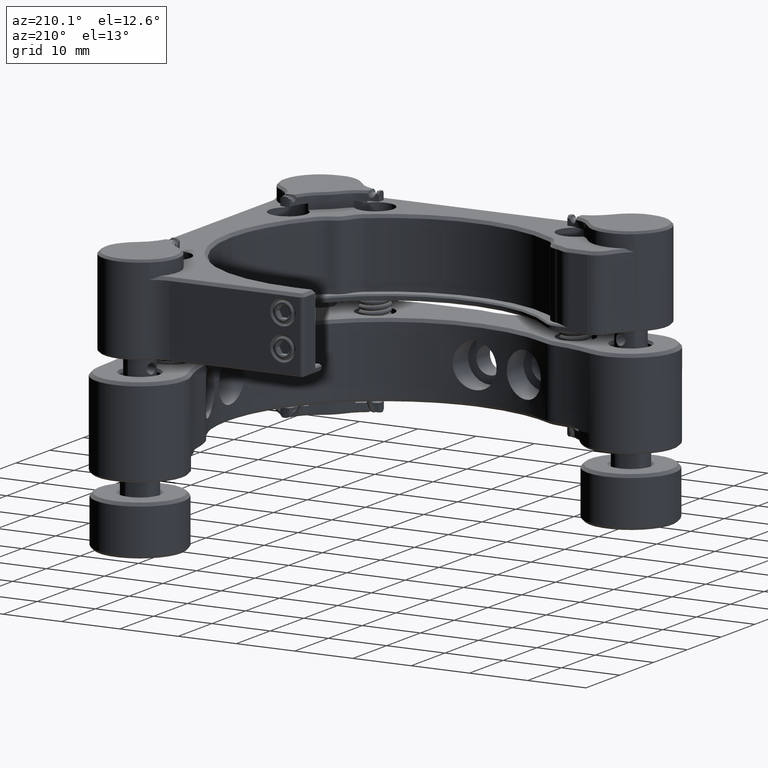
[diagram: clean part render]
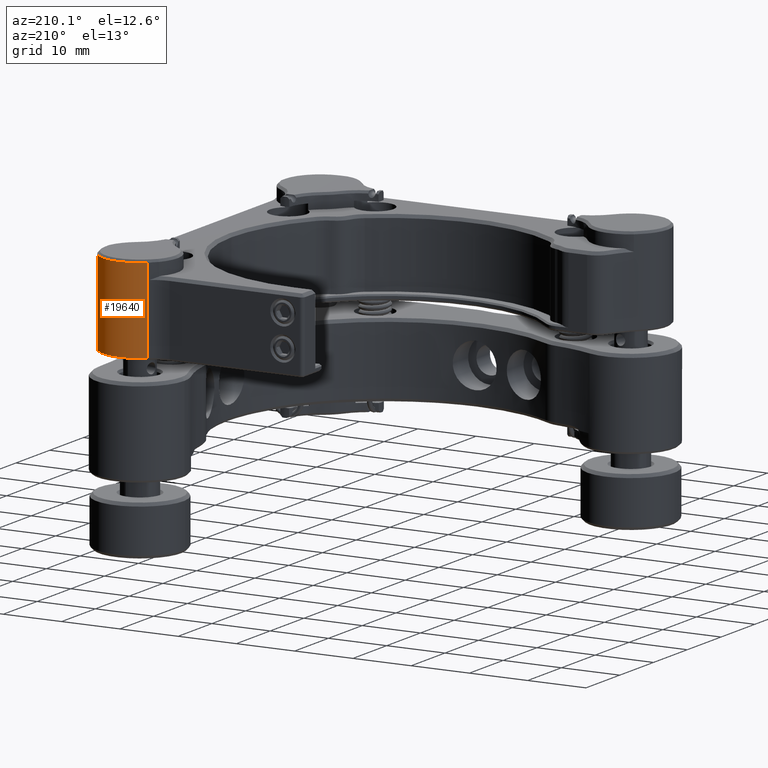
[diagram: same view with one face highlighted and labeled with its STEP entity id]
A machine part, auxiliary view. The second image highlights one B-rep face of the part: STEP entity #19640.
In plain terms, the highlighted cylindrical surface (partial cylindrical patch) has radius 6.35 mm, axis along (0, -0, 1).
Its self-contained STEP definition (entity closure, byte-faithful):
#537 = CYLINDRICAL_SURFACE ( 'NONE', #16799, 6.350000000000004974 ) ;
#955 = ORIENTED_EDGE ( 'NONE', *, *, #3869, .T. ) ;
#963 = EDGE_CURVE ( 'NONE', #19561, #17662, #25058, .T. ) ;
#1369 = VERTEX_POINT ( 'NONE', #12771 ) ;
#1458 = CARTESIAN_POINT ( 'NONE',  ( -1.293431173105933585, 67.29924649506348544, 26.91956876018483058 ) ) ;
#1947 = AXIS2_PLACEMENT_3D ( 'NONE', #28379, #12804, #11154 ) ;
#2272 = VERTEX_POINT ( 'NONE', #20800 ) ;
#3833 = CIRCLE ( 'NONE', #1947, 6.350000000000004974 ) ;
#3869 = EDGE_CURVE ( 'NONE', #2272, #1369, #3833, .T. ) ;
#4502 = EDGE_CURVE ( 'NONE', #2272, #17662, #16964, .T. ) ;
#4937 = DIRECTION ( 'NONE',  ( -0.000000000000000000, -0.000000000000000000, -1.000000000000000000 ) ) ;
#6442 = DIRECTION ( 'NONE',  ( 1.000000000000000000, 0.000000000000000000, 0.000000000000000000 ) ) ;
#6586 = ORIENTED_EDGE ( 'NONE', *, *, #19143, .T. ) ;
#8911 = CARTESIAN_POINT ( 'NONE',  ( 2.764553138176092606, 72.18343151709008509, 26.91956876018483058 ) ) ;
#9025 = VECTOR ( 'NONE', #21508, 1000.000000000000000 ) ;
#9208 = FACE_OUTER_BOUND ( 'NONE', #18312, .T. ) ;
#10182 = CARTESIAN_POINT ( 'NONE',  ( -7.643431173105945220, 67.29924649506375545, 26.91956876018483769 ) ) ;
#11154 = DIRECTION ( 'NONE',  ( 1.000000000000000000, 0.000000000000000000, 0.000000000000000000 ) ) ;
#11877 = CARTESIAN_POINT ( 'NONE',  ( 2.764553138176090386, 72.18343151709008509, 41.77856876018478971 ) ) ;
#12401 = AXIS2_PLACEMENT_3D ( 'NONE', #1458, #22005, #6442 ) ;
#12771 = CARTESIAN_POINT ( 'NONE',  ( 2.764553138176090386, 72.18343151709008509, 41.47856876018479966 ) ) ;
#12804 = DIRECTION ( 'NONE',  ( 0.000000000000000000, 0.000000000000000000, -1.000000000000000000 ) ) ;
#14029 = DIRECTION ( 'NONE',  ( -1.000000000000000000, 0.000000000000000000, 0.000000000000000000 ) ) ;
#15848 = VECTOR ( 'NONE', #20835, 1000.000000000000000 ) ;
#16799 = AXIS2_PLACEMENT_3D ( 'NONE', #26971, #4937, #14029 ) ;
#16964 = LINE ( 'NONE', #23433, #9025 ) ;
#17662 = VERTEX_POINT ( 'NONE', #10182 ) ;
#18312 = EDGE_LOOP ( 'NONE', ( #21920, #955, #6586, #18502 ) ) ;
#18491 = LINE ( 'NONE', #11877, #15848 ) ;
#18502 = ORIENTED_EDGE ( 'NONE', *, *, #963, .T. ) ;
#19143 = EDGE_CURVE ( 'NONE', #1369, #19561, #18491, .T. ) ;
#19561 = VERTEX_POINT ( 'NONE', #8911 ) ;
#19640 = ADVANCED_FACE ( 'NONE', ( #9208 ), #537, .T. ) ;
#20800 = CARTESIAN_POINT ( 'NONE',  ( -7.643431173105945220, 67.29924649506375545, 41.47856876018479966 ) ) ;
#20835 = DIRECTION ( 'NONE',  ( -0.000000000000000000, -0.000000000000000000, -1.000000000000000000 ) ) ;
#21508 = DIRECTION ( 'NONE',  ( -0.000000000000000000, -0.000000000000000000, -1.000000000000000000 ) ) ;
#21920 = ORIENTED_EDGE ( 'NONE', *, *, #4502, .F. ) ;
#22005 = DIRECTION ( 'NONE',  ( -0.000000000000000000, -0.000000000000000000, 1.000000000000000000 ) ) ;
#23433 = CARTESIAN_POINT ( 'NONE',  ( -7.643431173105945220, 67.29924649506375545, 41.77856876018478971 ) ) ;
#25058 = CIRCLE ( 'NONE', #12401, 6.350000000000004974 ) ;
#26971 = CARTESIAN_POINT ( 'NONE',  ( -1.293431173105933585, 67.29924649506348544, 41.77856876018478971 ) ) ;
#28379 = CARTESIAN_POINT ( 'NONE',  ( -1.293431173105933585, 67.29924649506348544, 41.47856876018479966 ) ) ;